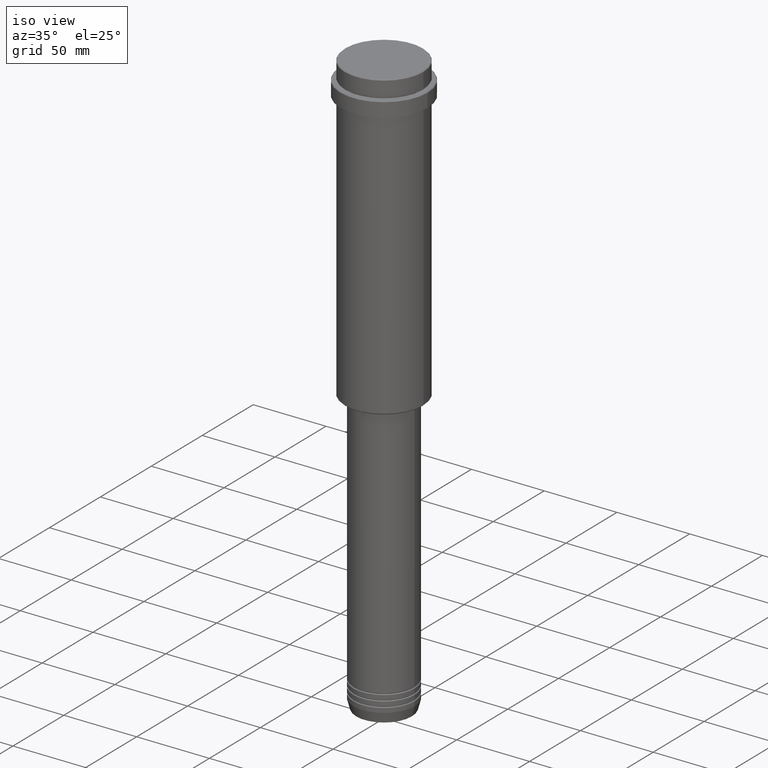
[diagram: clean part render]
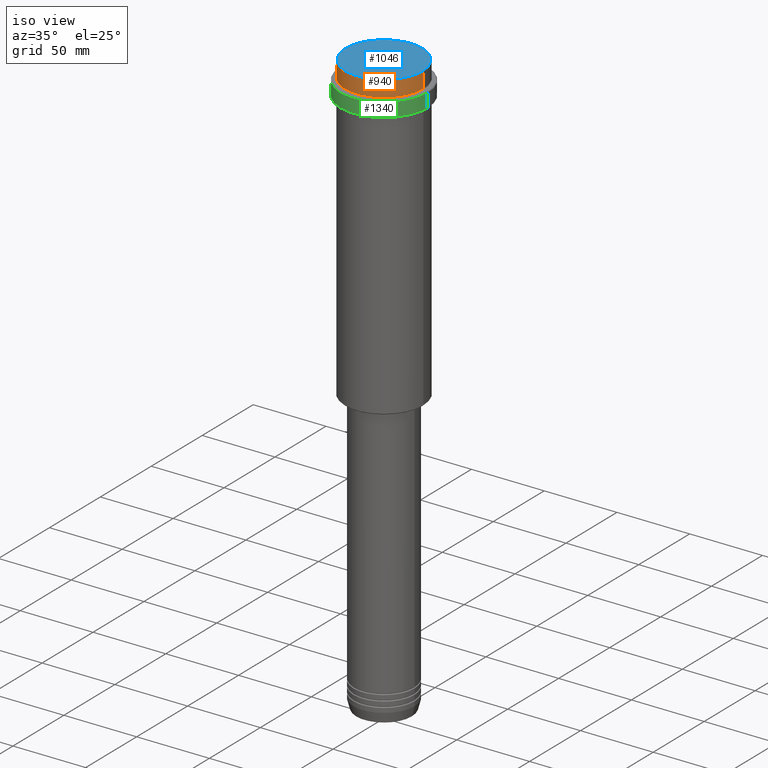
[diagram: same view with three faces highlighted in distinct colors, each labeled with its STEP entity id]
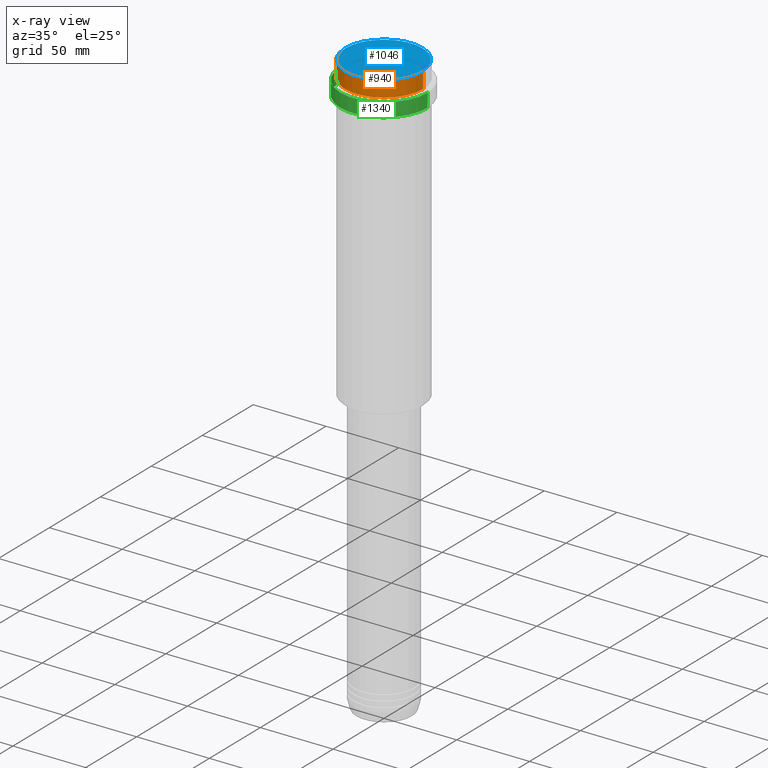
[diagram: x-ray of the same camera — body ghosted, the three highlighted faces saturated]
A machine part, iso view with three faces highlighted in distinct colors.
The next image is the same camera in x-ray (body ghosted, the three faces saturated) — at least one of them is partly hidden behind the body in this view.
Their STEP definitions:

[orange] entity #940 — the highlighted cylindrical surface (partial cylindrical patch) has radius 27 mm, axis along (-0, -0, 1).
#47 = CARTESIAN_POINT ( 'NONE',  ( -26.99999999999999645, 3.306546357697853339E-15, 0.000000000000000000 ) ) ;
#61 = CARTESIAN_POINT ( 'NONE',  ( 26.99999999999999645, 0.000000000000000000, 0.000000000000000000 ) ) ;
#118 = VERTEX_POINT ( 'NONE', #211 ) ;
#169 = DIRECTION ( 'NONE',  ( 1.000000000000000000, 0.000000000000000000, 0.000000000000000000 ) ) ;
#190 = CYLINDRICAL_SURFACE ( 'NONE', #464, 26.99999999999999645 ) ;
#211 = CARTESIAN_POINT ( 'NONE',  ( -26.99999999999999645, 3.306546357697853339E-15, -0.5000000000000316414 ) ) ;
#248 = CARTESIAN_POINT ( 'NONE',  ( 0.000000000000000000, 0.000000000000000000, -11.00000000000000178 ) ) ;
#289 = CARTESIAN_POINT ( 'NONE',  ( 26.99999999999999645, 0.000000000000000000, -11.00000000000000178 ) ) ;
#298 = DIRECTION ( 'NONE',  ( -0.000000000000000000, -0.000000000000000000, 1.000000000000000000 ) ) ;
#334 = EDGE_LOOP ( 'NONE', ( #826, #1122, #1005, #999 ) ) ;
#393 = EDGE_CURVE ( 'NONE', #505, #816, #711, .T. ) ;
#464 = AXIS2_PLACEMENT_3D ( 'NONE', #1281, #298, #733 ) ;
#463 = CARTESIAN_POINT ( 'NONE',  ( 0.000000000000000000, 0.000000000000000000, -0.5000000000000316414 ) ) ;
#497 = DIRECTION ( 'NONE',  ( -0.000000000000000000, -0.000000000000000000, 1.000000000000000000 ) ) ;
#505 = VERTEX_POINT ( 'NONE', #289 ) ;
#525 = CIRCLE ( 'NONE', #780, 26.99999999999999645 ) ;
#567 = CARTESIAN_POINT ( 'NONE',  ( -26.99999999999999645, 3.306546357697853339E-15, -11.00000000000000178 ) ) ;
#608 = VECTOR ( 'NONE', #497, 1000.000000000000000 ) ;
#653 = DIRECTION ( 'NONE',  ( 1.000000000000000000, 0.000000000000000000, 0.000000000000000000 ) ) ;
#661 = EDGE_CURVE ( 'NONE', #727, #505, #525, .T. ) ;
#711 = LINE ( 'NONE', #61, #608 ) ;
#727 = VERTEX_POINT ( 'NONE', #567 ) ;
#733 = DIRECTION ( 'NONE',  ( 1.000000000000000000, 0.000000000000000000, 0.000000000000000000 ) ) ;
#758 = VECTOR ( 'NONE', #951, 1000.000000000000000 ) ;
#780 = AXIS2_PLACEMENT_3D ( 'NONE', #248, #1316, #653 ) ;
#813 = CARTESIAN_POINT ( 'NONE',  ( 26.99999999999999645, 0.000000000000000000, -0.5000000000000316414 ) ) ;
#816 = VERTEX_POINT ( 'NONE', #813 ) ;
#826 = ORIENTED_EDGE ( 'NONE', *, *, #874, .F. ) ;
#874 = EDGE_CURVE ( 'NONE', #727, #118, #1064, .T. ) ;
#940 = ADVANCED_FACE ( 'NONE', ( #1167 ), #190, .T. ) ;
#951 = DIRECTION ( 'NONE',  ( -0.000000000000000000, -0.000000000000000000, 1.000000000000000000 ) ) ;
#999 = ORIENTED_EDGE ( 'NONE', *, *, #1259, .T. ) ;
#1005 = ORIENTED_EDGE ( 'NONE', *, *, #393, .T. ) ;
#1037 = AXIS2_PLACEMENT_3D ( 'NONE', #463, #1362, #169 ) ;
#1064 = LINE ( 'NONE', #47, #758 ) ;
#1122 = ORIENTED_EDGE ( 'NONE', *, *, #661, .T. ) ;
#1153 = CIRCLE ( 'NONE', #1037, 26.99999999999999645 ) ;
#1167 = FACE_OUTER_BOUND ( 'NONE', #334, .T. ) ;
#1259 = EDGE_CURVE ( 'NONE', #816, #118, #1153, .T. ) ;
#1281 = CARTESIAN_POINT ( 'NONE',  ( 0.000000000000000000, 0.000000000000000000, 0.000000000000000000 ) ) ;
#1316 = DIRECTION ( 'NONE',  ( -0.000000000000000000, -0.000000000000000000, 1.000000000000000000 ) ) ;
#1362 = DIRECTION ( 'NONE',  ( 0.000000000000000000, 0.000000000000000000, -1.000000000000000000 ) ) ;

[blue] entity #1046 — the highlighted planar face has unit normal (0, -0, 1).
#15 = ORIENTED_EDGE ( 'NONE', *, *, #320, .T. ) ;
#67 = VERTEX_POINT ( 'NONE', #969 ) ;
#128 = CARTESIAN_POINT ( 'NONE',  ( 0.000000000000000000, 0.000000000000000000, 0.000000000000000000 ) ) ;
#142 = CARTESIAN_POINT ( 'NONE',  ( 0.000000000000000000, 0.000000000000000000, 0.000000000000000000 ) ) ;
#213 = VERTEX_POINT ( 'NONE', #333 ) ;
#230 = CARTESIAN_POINT ( 'NONE',  ( 0.000000000000000000, 0.000000000000000000, 0.000000000000000000 ) ) ;
#320 = EDGE_CURVE ( 'NONE', #213, #67, #493, .T. ) ;
#330 = CIRCLE ( 'NONE', #947, 26.50000000000002487 ) ;
#333 = CARTESIAN_POINT ( 'NONE',  ( 26.50000000000002487, 3.275930187719171130E-15, 0.000000000000000000 ) ) ;
#346 = EDGE_CURVE ( 'NONE', #67, #213, #330, .T. ) ;
#370 = EDGE_LOOP ( 'NONE', ( #931, #15 ) ) ;
#415 = FACE_OUTER_BOUND ( 'NONE', #370, .T. ) ;
#493 = CIRCLE ( 'NONE', #627, 26.50000000000002487 ) ;
#574 = DIRECTION ( 'NONE',  ( 1.000000000000000000, 0.000000000000000000, 0.000000000000000000 ) ) ;
#627 = AXIS2_PLACEMENT_3D ( 'NONE', #128, #1112, #1002 ) ;
#865 = DIRECTION ( 'NONE',  ( 1.000000000000000000, 0.000000000000000000, 0.000000000000000000 ) ) ;
#931 = ORIENTED_EDGE ( 'NONE', *, *, #346, .T. ) ;
#947 = AXIS2_PLACEMENT_3D ( 'NONE', #142, #1127, #574 ) ;
#969 = CARTESIAN_POINT ( 'NONE',  ( -26.50000000000002487, 0.000000000000000000, 0.000000000000000000 ) ) ;
#973 = DIRECTION ( 'NONE',  ( 0.000000000000000000, -0.000000000000000000, 1.000000000000000000 ) ) ;
#1002 = DIRECTION ( 'NONE',  ( 1.000000000000000000, 0.000000000000000000, 0.000000000000000000 ) ) ;
#1046 = ADVANCED_FACE ( 'NONE', ( #415 ), #1416, .T. ) ;
#1080 = AXIS2_PLACEMENT_3D ( 'NONE', #230, #973, #865 ) ;
#1112 = DIRECTION ( 'NONE',  ( -0.000000000000000000, -0.000000000000000000, 1.000000000000000000 ) ) ;
#1127 = DIRECTION ( 'NONE',  ( -0.000000000000000000, -0.000000000000000000, 1.000000000000000000 ) ) ;
#1416 = PLANE ( 'NONE',  #1080 ) ;

[green] entity #1340 — the highlighted cylindrical surface (partial cylindrical patch) has radius 30 mm, axis along (-0, -0, 1).
#109 = CARTESIAN_POINT ( 'NONE',  ( -30.00000000000000000, 3.673940397442059178E-15, -12.50000000000000888 ) ) ;
#113 = CARTESIAN_POINT ( 'NONE',  ( 0.000000000000000000, 0.000000000000000000, -22.00000000000000355 ) ) ;
#172 = LINE ( 'NONE', #825, #423 ) ;
#184 = CARTESIAN_POINT ( 'NONE',  ( -29.99999999999999645, 3.673940397442058389E-15, -22.00000000000000355 ) ) ;
#197 = CARTESIAN_POINT ( 'NONE',  ( 30.00000000000000000, 0.000000000000000000, -12.50000000000000888 ) ) ;
#204 = CYLINDRICAL_SURFACE ( 'NONE', #734, 30.00000000000000000 ) ;
#221 = EDGE_CURVE ( 'NONE', #1320, #941, #771, .T. ) ;
#234 = CARTESIAN_POINT ( 'NONE',  ( 30.00000000000000000, 0.000000000000000000, 0.000000000000000000 ) ) ;
#241 = DIRECTION ( 'NONE',  ( 0.000000000000000000, 0.000000000000000000, -1.000000000000000000 ) ) ;
#250 = ORIENTED_EDGE ( 'NONE', *, *, #643, .T. ) ;
#321 = CARTESIAN_POINT ( 'NONE',  ( 0.000000000000000000, 0.000000000000000000, -12.50000000000000888 ) ) ;
#396 = DIRECTION ( 'NONE',  ( -0.000000000000000000, -0.000000000000000000, 1.000000000000000000 ) ) ;
#423 = VECTOR ( 'NONE', #396, 1000.000000000000000 ) ;
#424 = DIRECTION ( 'NONE',  ( -0.000000000000000000, -0.000000000000000000, 1.000000000000000000 ) ) ;
#436 = EDGE_CURVE ( 'NONE', #569, #690, #172, .T. ) ;
#448 = ORIENTED_EDGE ( 'NONE', *, *, #436, .F. ) ;
#469 = VECTOR ( 'NONE', #1010, 1000.000000000000000 ) ;
#548 = CIRCLE ( 'NONE', #802, 30.00000000000000000 ) ;
#550 = DIRECTION ( 'NONE',  ( 1.000000000000000000, 0.000000000000000000, 0.000000000000000000 ) ) ;
#569 = VERTEX_POINT ( 'NONE', #184 ) ;
#595 = ORIENTED_EDGE ( 'NONE', *, *, #221, .T. ) ;
#635 = DIRECTION ( 'NONE',  ( 1.000000000000000000, 0.000000000000000000, 0.000000000000000000 ) ) ;
#643 = EDGE_CURVE ( 'NONE', #941, #690, #548, .T. ) ;
#690 = VERTEX_POINT ( 'NONE', #109 ) ;
#691 = AXIS2_PLACEMENT_3D ( 'NONE', #113, #424, #550 ) ;
#734 = AXIS2_PLACEMENT_3D ( 'NONE', #867, #1395, #635 ) ;
#769 = DIRECTION ( 'NONE',  ( 1.000000000000000000, 0.000000000000000000, 0.000000000000000000 ) ) ;
#771 = LINE ( 'NONE', #234, #469 ) ;
#781 = EDGE_LOOP ( 'NONE', ( #448, #1353, #595, #250 ) ) ;
#802 = AXIS2_PLACEMENT_3D ( 'NONE', #321, #241, #769 ) ;
#825 = CARTESIAN_POINT ( 'NONE',  ( -30.00000000000000000, 3.673940397442059178E-15, 0.000000000000000000 ) ) ;
#848 = FACE_OUTER_BOUND ( 'NONE', #781, .T. ) ;
#867 = CARTESIAN_POINT ( 'NONE',  ( 0.000000000000000000, 0.000000000000000000, 0.000000000000000000 ) ) ;
#941 = VERTEX_POINT ( 'NONE', #197 ) ;
#1010 = DIRECTION ( 'NONE',  ( -0.000000000000000000, -0.000000000000000000, 1.000000000000000000 ) ) ;
#1087 = CARTESIAN_POINT ( 'NONE',  ( 29.99999999999999645, 0.000000000000000000, -22.00000000000000355 ) ) ;
#1125 = CIRCLE ( 'NONE', #691, 29.99999999999999645 ) ;
#1320 = VERTEX_POINT ( 'NONE', #1087 ) ;
#1340 = ADVANCED_FACE ( 'NONE', ( #848 ), #204, .T. ) ;
#1353 = ORIENTED_EDGE ( 'NONE', *, *, #1383, .T. ) ;
#1383 = EDGE_CURVE ( 'NONE', #569, #1320, #1125, .T. ) ;
#1395 = DIRECTION ( 'NONE',  ( -0.000000000000000000, -0.000000000000000000, 1.000000000000000000 ) ) ;